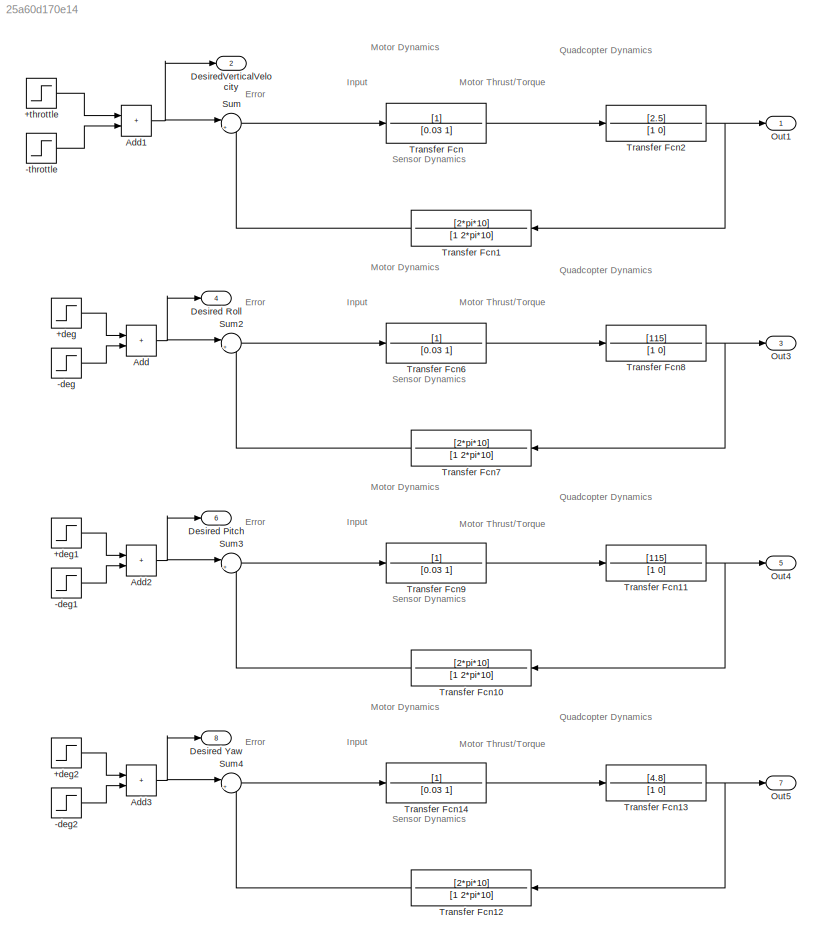
MODEL slx_25a60d170e14
KIND model
CONFIG AbsTol = auto
CONFIG EnableMultiTasking = off
CONFIG FixedStep = auto
CONFIG MaxStep = auto
CONFIG MinStep = auto
CONFIG RelTol = 1e-3
CONFIG SampleTimeConstraint = Unconstrained
CONFIG SolverName = VariableStepAuto
CONFIG StartTime = 0.0
CONFIG StopTime = 10.0
BLOCK [Step] +deg
  After = 30
  SampleTime = 0
  Time = 3
BLOCK [Step] +deg1
  After = 30
  SampleTime = 0
  Time = 3
BLOCK [Step] +deg2
  After = 30
  SampleTime = 0
  Time = 3
BLOCK [Step] +throttle
  After = 10
  SampleTime = 0
BLOCK [Step] -deg
  After = -30
  SampleTime = 0
  Time = 5
BLOCK [Step] -deg1
  After = -30
  SampleTime = 0
  Time = 5
BLOCK [Step] -deg2
  After = -30
  SampleTime = 0
  Time = 5
BLOCK [Step] -throttle
  After = -10
  SampleTime = 0
  Time = 5
BLOCK [Sum] Add
  IconShape = rectangular
BLOCK [Sum] Add1
  IconShape = rectangular
BLOCK [Sum] Add2
  IconShape = rectangular
BLOCK [Sum] Add3
  IconShape = rectangular
BLOCK [Outport] Desired Pitch
  Port = 6
BLOCK [Outport] Desired Roll
  Port = 4
BLOCK [Outport] Desired Yaw
  Port = 8
BLOCK [Outport] DesiredVerticalVelocity
  Port = 2
BLOCK [Outport] Out1
  SignalName = VerticalVelocity_actual
BLOCK [Outport] Out3
  Port = 3
  SignalName = RollRate_actual
BLOCK [Outport] Out4
  Port = 5
  SignalName = PitchRate_actual
BLOCK [Outport] Out5
  Port = 7
  SignalName = YawRate_actual
BLOCK [Sum] Sum
  Inputs = |+-
BLOCK [Sum] Sum2
  Inputs = |+-
BLOCK [Sum] Sum3
  Inputs = |+-
BLOCK [Sum] Sum4
  Inputs = |+-
BLOCK [TransferFcn] Transfer Fcn
  Denominator = [0.03 1]
BLOCK [TransferFcn] Transfer Fcn1
  Denominator = [1 2*pi*10]
  Numerator = [2*pi*10]
BLOCK [TransferFcn] Transfer Fcn10
  Denominator = [1 2*pi*10]
  Numerator = [2*pi*10]
BLOCK [TransferFcn] Transfer Fcn11
  Denominator = [1 0]
  Numerator = [115]
BLOCK [TransferFcn] Transfer Fcn12
  Denominator = [1 2*pi*10]
  Numerator = [2*pi*10]
BLOCK [TransferFcn] Transfer Fcn13
  Denominator = [1 0]
  Numerator = [4.8]
BLOCK [TransferFcn] Transfer Fcn14
  Denominator = [0.03 1]
BLOCK [TransferFcn] Transfer Fcn2
  Denominator = [1 0]
  Numerator = [2.5]
BLOCK [TransferFcn] Transfer Fcn6
  Denominator = [0.03 1]
BLOCK [TransferFcn] Transfer Fcn7
  Denominator = [1 2*pi*10]
  Numerator = [2*pi*10]
BLOCK [TransferFcn] Transfer Fcn8
  Denominator = [1 0]
  Numerator = [115]
BLOCK [TransferFcn] Transfer Fcn9
  Denominator = [0.03 1]
ANNOTATION (root): Error
ANNOTATION (root): Input
ANNOTATION (root): Motor Dynamics
ANNOTATION (root): Motor Thrust/Torque
ANNOTATION (root): Quadcopter Dynamics
ANNOTATION (root): Sensor Dynamics
LINE +deg1:1 -> Add2:1
LINE +deg2:1 -> Add3:1
LINE +deg:1 -> Add:1
LINE +throttle:1 -> Add1:1
LINE -deg1:1 -> Add2:2
LINE -deg2:1 -> Add3:2
LINE -deg:1 -> Add:2
LINE -throttle:1 -> Add1:2
NET Add1:1 -> DesiredVerticalVelocity:1, Sum:1
NET Add2:1 -> Desired Pitch:1, Sum3:1
NET Add3:1 -> Desired Yaw:1, Sum4:1
NET Add:1 -> Desired Roll:1, Sum2:1
LINE Sum2:1 -> Transfer Fcn6:1
LINE Sum3:1 -> Transfer Fcn9:1
LINE Sum4:1 -> Transfer Fcn14:1
LINE Sum:1 -> Transfer Fcn:1
LINE Transfer Fcn10:1 -> Sum3:2
NET Transfer Fcn11:1 -> Out4:1, Transfer Fcn10:1
LINE Transfer Fcn12:1 -> Sum4:2
NET Transfer Fcn13:1 -> Out5:1, Transfer Fcn12:1
LINE Transfer Fcn14:1 -> Transfer Fcn13:1
LINE Transfer Fcn1:1 -> Sum:2
NET Transfer Fcn2:1 -> Out1:1, Transfer Fcn1:1
LINE Transfer Fcn6:1 -> Transfer Fcn8:1
LINE Transfer Fcn7:1 -> Sum2:2
NET Transfer Fcn8:1 -> Out3:1, Transfer Fcn7:1
LINE Transfer Fcn9:1 -> Transfer Fcn11:1
LINE Transfer Fcn:1 -> Transfer Fcn2:1
note: NET lines group one-source signal fan-out (src -> all destinations, sorted); 1:1 wires keep LINE
